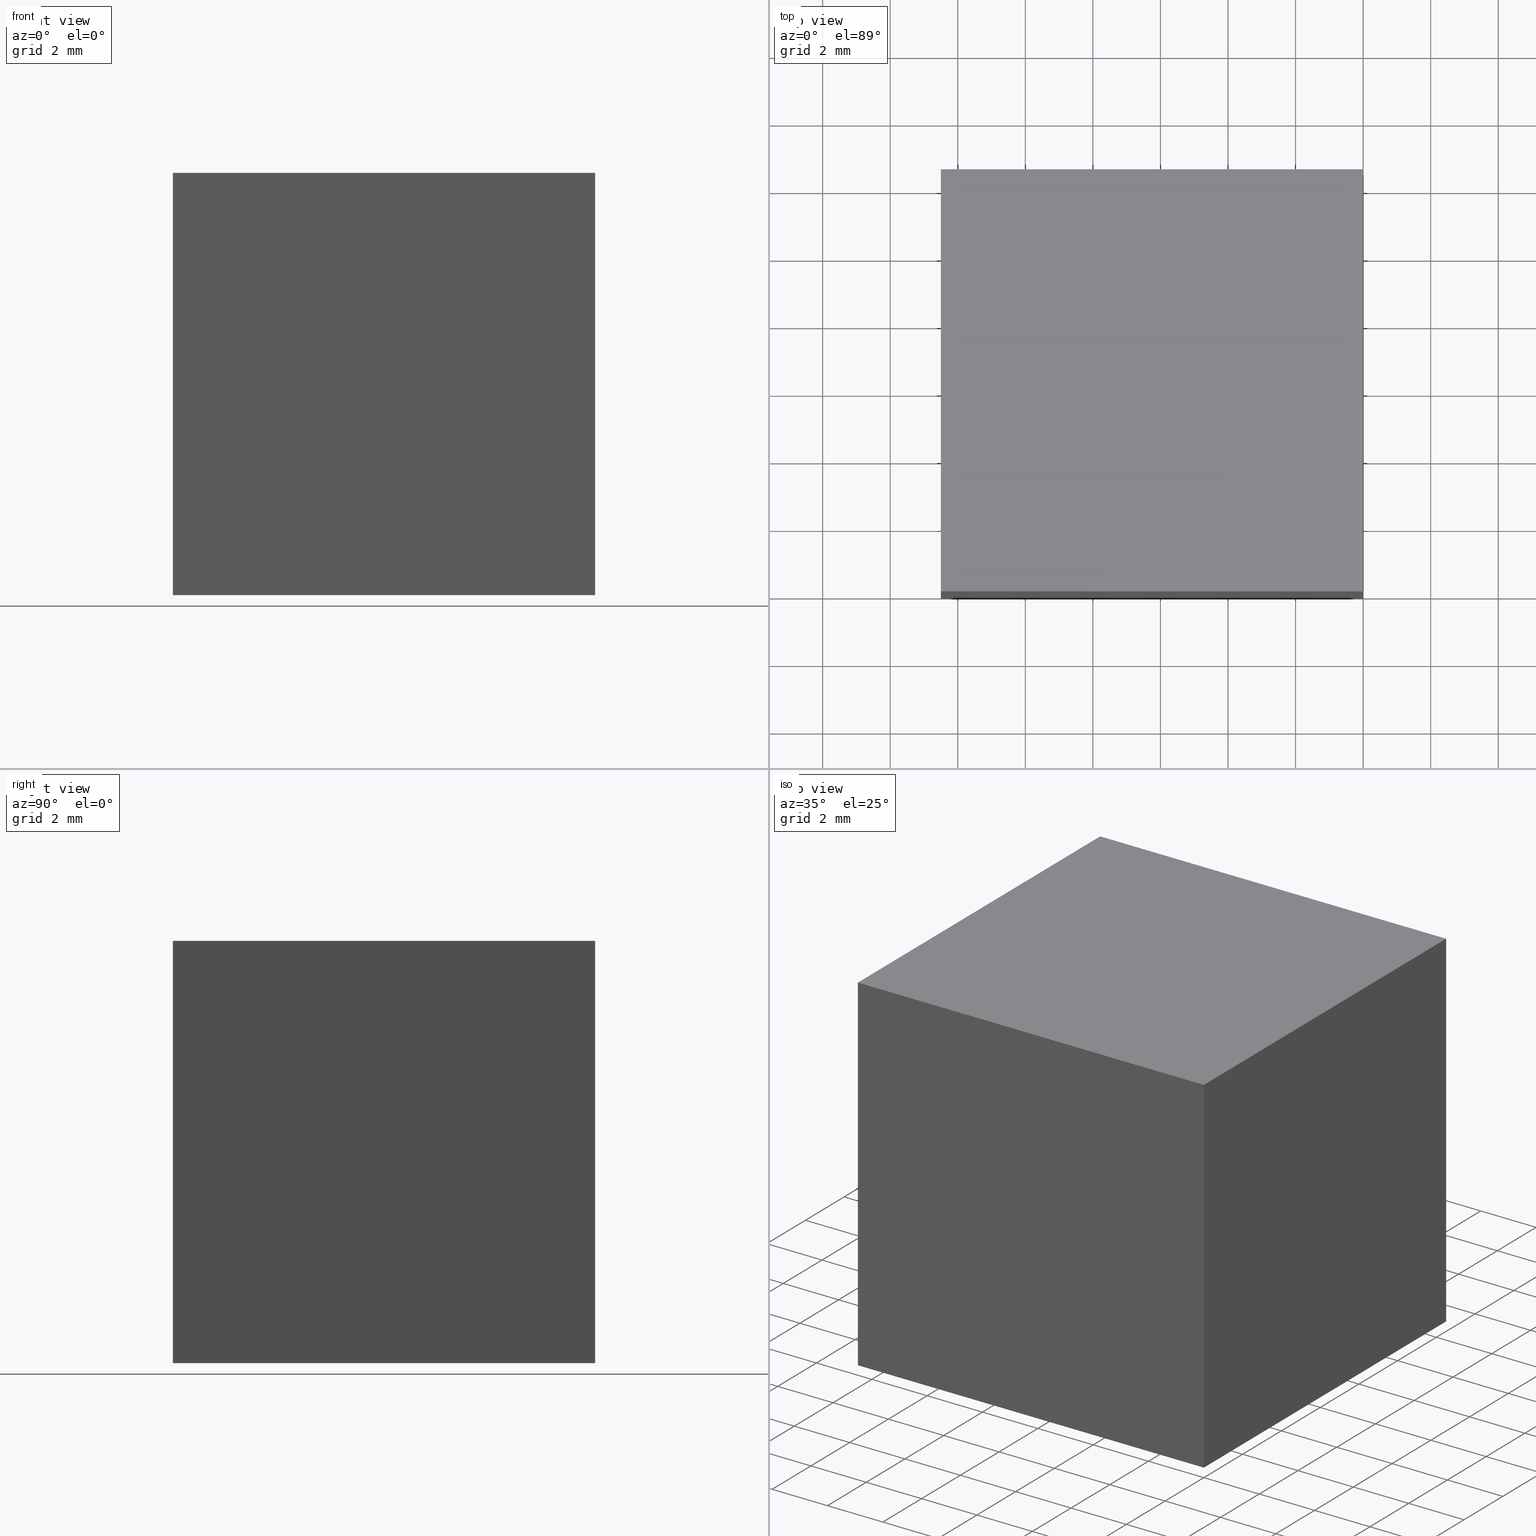
[diagram: canonical four-view strip — front | top / right | iso, engineering-drawing reading convention]
A machine part, canonical four-view strip (front | top / right | iso — engineering-drawing reading convention). The complete STEP part file that produces these views, byte-faithful:
ISO-10303-21;
HEADER;
FILE_DESCRIPTION (( 'STEP AP214' ),
    '1' );
FILE_NAME ('352506.STEP',
    '2019-08-15T02:03:04',
    ( 'user' ),
    ( '΢���й�' ),
    'SwSTEP 2.0',
    'SolidWorks 2016',
    '' );
FILE_SCHEMA (( 'AUTOMOTIVE_DESIGN' ));
ENDSEC;

DATA;
#1 = MECHANICAL_DESIGN_GEOMETRIC_PRESENTATION_REPRESENTATION (  '', ( #270 ), #19 ) ;
#2 = PRESENTATION_LAYER_ASSIGNMENT (  '', '', ( #275 ) ) ;
#3 = AXIS2_PLACEMENT_3D ( 'NONE', #130, #201, #47 ) ;
#4 = VERTEX_POINT ( 'NONE', #48 ) ;
#5 = PRODUCT ( '352506', '352506', '', ( #208 ) ) ;
#6 = VECTOR ( 'NONE', #52, 1000.000000000000000 ) ;
#7 =( NAMED_UNIT ( * ) SI_UNIT ( $, .STERADIAN. ) SOLID_ANGLE_UNIT ( ) );
#8 = EDGE_CURVE ( 'NONE', #56, #4, #16, .T. ) ;
#9 = CARTESIAN_POINT ( 'NONE',  ( 0.0000000000000000000, 0.0000000000000000000, 0.0000000000000000000 ) ) ;
#10 = ORIENTED_EDGE ( 'NONE', *, *, #150, .T. ) ;
#11 = CARTESIAN_POINT ( 'NONE',  ( 0.0000000000000000000, 12.50000000000000000, 0.0000000000000000000 ) ) ;
#12 = SURFACE_SIDE_STYLE ('',( #133 ) ) ;
#13 = VERTEX_POINT ( 'NONE', #244 ) ;
#14 = UNCERTAINTY_MEASURE_WITH_UNIT (LENGTH_MEASURE( 1.000000000000000100E-005 ), #210, 'distance_accuracy_value', 'NONE');
#15 = VECTOR ( 'NONE', #80, 1000.000000000000000 ) ;
#16 = LINE ( 'NONE', #223, #99 ) ;
#17 = ADVANCED_FACE ( 'NONE', ( #78 ), #67, .T. ) ;
#18 = CARTESIAN_POINT ( 'NONE',  ( -12.50000000000000000, 0.0000000000000000000, 0.0000000000000000000 ) ) ;
#19 =( GEOMETRIC_REPRESENTATION_CONTEXT ( 3 ) GLOBAL_UNCERTAINTY_ASSIGNED_CONTEXT ( ( #14 ) ) GLOBAL_UNIT_ASSIGNED_CONTEXT ( ( #210, #231, #144 ) ) REPRESENTATION_CONTEXT ( 'NONE', 'WORKASPACE' ) );
#20 = SURFACE_STYLE_FILL_AREA ( #135 ) ;
#21 = CARTESIAN_POINT ( 'NONE',  ( 0.0000000000000000000, 0.0000000000000000000, 0.0000000000000000000 ) ) ;
#22 = CARTESIAN_POINT ( 'NONE',  ( -12.50000000000000000, 12.50000000000000000, -12.49999999999999800 ) ) ;
#23 = MECHANICAL_DESIGN_GEOMETRIC_PRESENTATION_REPRESENTATION (  '', ( #275 ), #38 ) ;
#24 = DIRECTION ( 'NONE',  ( -0.0000000000000000000, -1.000000000000000000, -0.0000000000000000000 ) ) ;
#25 = LINE ( 'NONE', #102, #182 ) ;
#26 = EDGE_LOOP ( 'NONE', ( #180, #37, #227 ) ) ;
#27 = PLANE ( 'NONE',  #221 ) ;
#28 = EDGE_CURVE ( 'NONE', #97, #13, #141, .T. ) ;
#29 = CARTESIAN_POINT ( 'NONE',  ( 0.0000000000000000000, 12.50000000000000000, 0.0000000000000000000 ) ) ;
#30 = FACE_OUTER_BOUND ( 'NONE', #43, .T. ) ;
#31 = LINE ( 'NONE', #301, #179 ) ;
#32 = SURFACE_SIDE_STYLE ('',( #136 ) ) ;
#33 = CLOSED_SHELL ( 'NONE', ( #170, #82, #17, #267, #101 ) ) ;
#34 = DIRECTION ( 'NONE',  ( 0.0000000000000000000, 0.0000000000000000000, 1.000000000000000000 ) ) ;
#35 = PRESENTATION_STYLE_ASSIGNMENT (( #107 ) ) ;
#36 =( NAMED_UNIT ( * ) SI_UNIT ( $, .STERADIAN. ) SOLID_ANGLE_UNIT ( ) );
#37 = ORIENTED_EDGE ( 'NONE', *, *, #235, .T. ) ;
#38 =( GEOMETRIC_REPRESENTATION_CONTEXT ( 3 ) GLOBAL_UNCERTAINTY_ASSIGNED_CONTEXT ( ( #79 ) ) GLOBAL_UNIT_ASSIGNED_CONTEXT ( ( #248, #283, #7 ) ) REPRESENTATION_CONTEXT ( 'NONE', 'WORKASPACE' ) );
#39 = VECTOR ( 'NONE', #239, 1000.000000000000000 ) ;
#40 = AXIS2_PLACEMENT_3D ( 'NONE', #66, #200, #46 ) ;
#41 = EDGE_CURVE ( 'NONE', #97, #195, #291, .T. ) ;
#42 = DIRECTION ( 'NONE',  ( 0.7071067811865475700, 0.0000000000000000000, 0.7071067811865474600 ) ) ;
#43 = EDGE_LOOP ( 'NONE', ( #137, #258, #279, #183 ) ) ;
#44 = VECTOR ( 'NONE', #103, 1000.000000000000000 ) ;
#45 = ORIENTED_EDGE ( 'NONE', *, *, #254, .T. ) ;
#46 = DIRECTION ( 'NONE',  ( 0.0000000000000000000, -0.0000000000000000000, 1.000000000000000000 ) ) ;
#47 = DIRECTION ( 'NONE',  ( 1.000000000000000000, 0.0000000000000000000, 0.0000000000000000000 ) ) ;
#48 = CARTESIAN_POINT ( 'NONE',  ( -12.50000000000000000, 12.50000000000000000, -12.49999999999999800 ) ) ;
#49 = FACE_OUTER_BOUND ( 'NONE', #26, .T. ) ;
#50 = PRODUCT_DEFINITION_SHAPE ( 'NONE', 'NONE',  #148 ) ;
#51 = DIRECTION ( 'NONE',  ( 0.0000000000000000000, -0.0000000000000000000, 1.000000000000000000 ) ) ;
#52 = DIRECTION ( 'NONE',  ( 0.7071067811865475700, 0.0000000000000000000, 0.7071067811865474600 ) ) ;
#53 = ORIENTED_EDGE ( 'NONE', *, *, #257, .T. ) ;
#54 = DIRECTION ( 'NONE',  ( -0.0000000000000000000, -1.000000000000000000, -0.0000000000000000000 ) ) ;
#55 = ORIENTED_EDGE ( 'NONE', *, *, #41, .F. ) ;
#56 = VERTEX_POINT ( 'NONE', #158 ) ;
#57 = PLANE ( 'NONE',  #232 ) ;
#58 = VERTEX_POINT ( 'NONE', #274 ) ;
#59 = VECTOR ( 'NONE', #129, 1000.000000000000000 ) ;
#60 = FILL_AREA_STYLE_COLOUR ( '', #77 ) ;
#61 = ADVANCED_FACE ( 'NONE', ( #203 ), #106, .F. ) ;
#62 = DIRECTION ( 'NONE',  ( 0.0000000000000000000, -1.000000000000000000, 0.0000000000000000000 ) ) ;
#63 = EDGE_LOOP ( 'NONE', ( #53, #229, #45 ) ) ;
#64 = DIRECTION ( 'NONE',  ( 0.0000000000000000000, 1.000000000000000000, 0.0000000000000000000 ) ) ;
#65 = AXIS2_PLACEMENT_3D ( 'NONE', #9, #34, #185 ) ;
#66 = CARTESIAN_POINT ( 'NONE',  ( 0.0000000000000000000, 0.0000000000000000000, 0.0000000000000000000 ) ) ;
#67 = PLANE ( 'NONE',  #3 ) ;
#68 = STYLED_ITEM ( 'NONE', ( #75 ), #271 ) ;
#69 = AXIS2_PLACEMENT_3D ( 'NONE', #174, #128, #272 ) ;
#70 = VERTEX_POINT ( 'NONE', #243 ) ;
#71 = LINE ( 'NONE', #226, #213 ) ;
#72 = ORIENTED_EDGE ( 'NONE', *, *, #278, .F. ) ;
#73 = ADVANCED_BREP_SHAPE_REPRESENTATION ( '352506', ( #271, #237, #65 ), #218 ) ;
#74 = EDGE_LOOP ( 'NONE', ( #169, #284, #100, #287 ) ) ;
#75 = PRESENTATION_STYLE_ASSIGNMENT (( #119 ) ) ;
#76 = EDGE_LOOP ( 'NONE', ( #108, #113, #104 ) ) ;
#77 = COLOUR_RGB ( '',1.000000000000000000, 1.000000000000000000, 1.000000000000000000 ) ;
#78 = FACE_OUTER_BOUND ( 'NONE', #236, .T. ) ;
#79 = UNCERTAINTY_MEASURE_WITH_UNIT (LENGTH_MEASURE( 1.000000000000000100E-005 ), #248, 'distance_accuracy_value', 'NONE');
#80 = DIRECTION ( 'NONE',  ( -0.0000000000000000000, -0.0000000000000000000, -1.000000000000000000 ) ) ;
#81 = SHAPE_DEFINITION_REPRESENTATION ( #50, #73 ) ;
#82 = ADVANCED_FACE ( 'NONE', ( #255 ), #297, .T. ) ;
#83 = VECTOR ( 'NONE', #62, 1000.000000000000000 ) ;
#84 = CARTESIAN_POINT ( 'NONE',  ( -12.50000000000000000, 12.50000000000000000, -12.49999999999999800 ) ) ;
#85 = DIRECTION ( 'NONE',  ( -1.000000000000000000, 0.0000000000000000000, 1.387778780781445700E-016 ) ) ;
#86 = FACE_OUTER_BOUND ( 'NONE', #76, .T. ) ;
#87 = LINE ( 'NONE', #177, #282 ) ;
#88 = CARTESIAN_POINT ( 'NONE',  ( 0.0000000000000000000, 12.50000000000000000, 0.0000000000000000000 ) ) ;
#89 = PLANE ( 'NONE',  #145 ) ;
#90 = DIRECTION ( 'NONE',  ( 0.7071067811865474600, 0.0000000000000000000, -0.7071067811865476800 ) ) ;
#91 = ORIENTED_EDGE ( 'NONE', *, *, #28, .T. ) ;
#92 = UNCERTAINTY_MEASURE_WITH_UNIT (LENGTH_MEASURE( 1.000000000000000100E-005 ), #289, 'distance_accuracy_value', 'NONE');
#93 = ORIENTED_EDGE ( 'NONE', *, *, #41, .T. ) ;
#94 = CARTESIAN_POINT ( 'NONE',  ( -12.50000000000000000, 12.50000000000000000, -12.49999999999999800 ) ) ;
#95 = LINE ( 'NONE', #94, #147 ) ;
#96 = FILL_AREA_STYLE_COLOUR ( '', #194 ) ;
#97 = VERTEX_POINT ( 'NONE', #84 ) ;
#98 =( NAMED_UNIT ( * ) PLANE_ANGLE_UNIT ( ) SI_UNIT ( $, .RADIAN. ) );
#99 = VECTOR ( 'NONE', #85, 1000.000000000000000 ) ;
#100 = ORIENTED_EDGE ( 'NONE', *, *, #235, .F. ) ;
#101 = ADVANCED_FACE ( 'NONE', ( #152 ), #105, .F. ) ;
#102 = CARTESIAN_POINT ( 'NONE',  ( 0.0000000000000000000, 0.0000000000000000000, 0.0000000000000000000 ) ) ;
#103 = DIRECTION ( 'NONE',  ( 0.0000000000000000000, 0.0000000000000000000, -1.000000000000000000 ) ) ;
#104 = ORIENTED_EDGE ( 'NONE', *, *, #293, .F. ) ;
#105 = PLANE ( 'NONE',  #165 ) ;
#106 = PLANE ( 'NONE',  #40 ) ;
#107 = SURFACE_STYLE_USAGE ( .BOTH. , #277 ) ;
#108 = ORIENTED_EDGE ( 'NONE', *, *, #28, .F. ) ;
#109 = CARTESIAN_POINT ( 'NONE',  ( -12.50000000000000000, 12.50000000000000000, -12.49999999999999800 ) ) ;
#110 = PRODUCT_DEFINITION_CONTEXT ( 'detailed design', #112, 'design' ) ;
#111 = VERTEX_POINT ( 'NONE', #156 ) ;
#112 = APPLICATION_CONTEXT ( 'automotive_design' ) ;
#113 = ORIENTED_EDGE ( 'NONE', *, *, #206, .F. ) ;
#114 = DIRECTION ( 'NONE',  ( 1.000000000000000000, 0.0000000000000000000, -1.387778780781445700E-016 ) ) ;
#115 = CARTESIAN_POINT ( 'NONE',  ( 0.0000000000000000000, 12.50000000000000000, 0.0000000000000000000 ) ) ;
#116 = ORIENTED_EDGE ( 'NONE', *, *, #186, .F. ) ;
#117 = FILL_AREA_STYLE ('',( #96 ) ) ;
#118 =( LENGTH_UNIT ( ) NAMED_UNIT ( * ) SI_UNIT ( .MILLI., .METRE. ) );
#119 = SURFACE_STYLE_USAGE ( .BOTH. , #12 ) ;
#120 = APPLICATION_PROTOCOL_DEFINITION ( 'draft international standard', 'automotive_design', 1998, #112 ) ;
#121 = ORIENTED_EDGE ( 'NONE', *, *, #175, .F. ) ;
#122 = FILL_AREA_STYLE_COLOUR ( '', #269 ) ;
#123 = LINE ( 'NONE', #295, #6 ) ;
#124 = ADVANCED_FACE ( 'NONE', ( #49 ), #219, .T. ) ;
#125 = EDGE_CURVE ( 'NONE', #240, #220, #71, .T. ) ;
#126 = DIRECTION ( 'NONE',  ( -0.0000000000000000000, 1.000000000000000000, 0.0000000000000000000 ) ) ;
#127 = DIRECTION ( 'NONE',  ( 0.7071067811865474600, 0.0000000000000000000, -0.7071067811865476800 ) ) ;
#128 = DIRECTION ( 'NONE',  ( -1.000000000000000000, 0.0000000000000000000, 0.0000000000000000000 ) ) ;
#129 = DIRECTION ( 'NONE',  ( 0.7071067811865475700, 0.0000000000000000000, 0.7071067811865474600 ) ) ;
#130 = CARTESIAN_POINT ( 'NONE',  ( -12.50000000000000000, 12.50000000000000000, 0.0000000000000000000 ) ) ;
#131 = VECTOR ( 'NONE', #225, 1000.000000000000000 ) ;
#132 = ORIENTED_EDGE ( 'NONE', *, *, #222, .F. ) ;
#133 = SURFACE_STYLE_FILL_AREA ( #151 ) ;
#134 = VECTOR ( 'NONE', #160, 1000.000000000000000 ) ;
#135 = FILL_AREA_STYLE ('',( #122 ) ) ;
#136 = SURFACE_STYLE_FILL_AREA ( #117 ) ;
#137 = ORIENTED_EDGE ( 'NONE', *, *, #125, .T. ) ;
#138 = LINE ( 'NONE', #262, #146 ) ;
#139 = LINE ( 'NONE', #18, #131 ) ;
#140 = LINE ( 'NONE', #217, #39 ) ;
#141 = LINE ( 'NONE', #298, #59 ) ;
#142 = CARTESIAN_POINT ( 'NONE',  ( -12.50000000000000000, 0.0000000000000000000, -12.49999999999999800 ) ) ;
#143 = DIRECTION ( 'NONE',  ( -0.0000000000000000000, -0.0000000000000000000, -1.000000000000000000 ) ) ;
#144 =( NAMED_UNIT ( * ) SI_UNIT ( $, .STERADIAN. ) SOLID_ANGLE_UNIT ( ) );
#145 = AXIS2_PLACEMENT_3D ( 'NONE', #216, #181, #155 ) ;
#146 = VECTOR ( 'NONE', #149, 1000.000000000000000 ) ;
#147 = VECTOR ( 'NONE', #143, 1000.000000000000000 ) ;
#148 = PRODUCT_DEFINITION ( 'δ֪', '', #163, #110 ) ;
#149 = DIRECTION ( 'NONE',  ( -1.000000000000000000, -0.0000000000000000000, -0.0000000000000000000 ) ) ;
#150 = EDGE_CURVE ( 'NONE', #56, #292, #87, .T. ) ;
#151 = FILL_AREA_STYLE ('',( #60 ) ) ;
#152 = FACE_OUTER_BOUND ( 'NONE', #63, .T. ) ;
#153 = DIRECTION ( 'NONE',  ( 0.0000000000000000000, 0.0000000000000000000, -1.000000000000000000 ) ) ;
#154 = ORIENTED_EDGE ( 'NONE', *, *, #245, .T. ) ;
#155 = DIRECTION ( 'NONE',  ( 0.0000000000000000000, -0.0000000000000000000, 1.000000000000000000 ) ) ;
#156 = CARTESIAN_POINT ( 'NONE',  ( 0.0000000000000000000, 0.0000000000000000000, 0.0000000000000000000 ) ) ;
#157 = EDGE_LOOP ( 'NONE', ( #191, #193, #251 ) ) ;
#158 = CARTESIAN_POINT ( 'NONE',  ( 0.0000000000000000000, 12.50000000000000000, -12.50000000000000000 ) ) ;
#159 = FACE_OUTER_BOUND ( 'NONE', #296, .T. ) ;
#160 = DIRECTION ( 'NONE',  ( -0.0000000000000000000, -1.000000000000000000, -0.0000000000000000000 ) ) ;
#161 = PLANE ( 'NONE',  #253 ) ;
#162 = PRESENTATION_LAYER_ASSIGNMENT (  '', '', ( #68 ) ) ;
#163 = PRODUCT_DEFINITION_FORMATION_WITH_SPECIFIED_SOURCE ( '�κ�', '', #5, .NOT_KNOWN. ) ;
#164 = EDGE_LOOP ( 'NONE', ( #281, #116, #246, #93 ) ) ;
#165 = AXIS2_PLACEMENT_3D ( 'NONE', #21, #64, #198 ) ;
#166 = EDGE_CURVE ( 'NONE', #4, #300, #123, .T. ) ;
#167 = UNCERTAINTY_MEASURE_WITH_UNIT (LENGTH_MEASURE( 1.000000000000000100E-005 ), #118, 'distance_accuracy_value', 'NONE');
#168 =( NAMED_UNIT ( * ) PLANE_ANGLE_UNIT ( ) SI_UNIT ( $, .RADIAN. ) );
#169 = ORIENTED_EDGE ( 'NONE', *, *, #228, .T. ) ;
#170 = ADVANCED_FACE ( 'NONE', ( #159 ), #27, .T. ) ;
#171 = MECHANICAL_DESIGN_GEOMETRIC_PRESENTATION_REPRESENTATION (  '', ( #68 ), #187 ) ;
#172 = ORIENTED_EDGE ( 'NONE', *, *, #186, .T. ) ;
#173 = PRODUCT_RELATED_PRODUCT_CATEGORY ( 'part', '', ( #5 ) ) ;
#174 = CARTESIAN_POINT ( 'NONE',  ( -12.50000000000000000, 12.50000000000000000, -12.49999999999999800 ) ) ;
#175 = EDGE_CURVE ( 'NONE', #4, #240, #238, .T. ) ;
#176 = DIRECTION ( 'NONE',  ( 0.0000000000000000000, -1.000000000000000000, 0.0000000000000000000 ) ) ;
#177 = CARTESIAN_POINT ( 'NONE',  ( 0.0000000000000000000, 12.50000000000000000, -12.50000000000000000 ) ) ;
#178 = ORIENTED_EDGE ( 'NONE', *, *, #222, .T. ) ;
#179 = VECTOR ( 'NONE', #299, 1000.000000000000000 ) ;
#180 = ORIENTED_EDGE ( 'NONE', *, *, #166, .T. ) ;
#181 = DIRECTION ( 'NONE',  ( 0.0000000000000000000, 1.000000000000000000, 0.0000000000000000000 ) ) ;
#182 = VECTOR ( 'NONE', #42, 1000.000000000000000 ) ;
#183 = ORIENTED_EDGE ( 'NONE', *, *, #175, .T. ) ;
#184 = CARTESIAN_POINT ( 'NONE',  ( -12.50000000000000000, 12.50000000000000000, -12.49999999999999800 ) ) ;
#185 = DIRECTION ( 'NONE',  ( 1.000000000000000000, 0.0000000000000000000, 0.0000000000000000000 ) ) ;
#186 = EDGE_CURVE ( 'NONE', #70, #58, #31, .T. ) ;
#187 =( GEOMETRIC_REPRESENTATION_CONTEXT ( 3 ) GLOBAL_UNCERTAINTY_ASSIGNED_CONTEXT ( ( #92 ) ) GLOBAL_UNIT_ASSIGNED_CONTEXT ( ( #289, #98, #263 ) ) REPRESENTATION_CONTEXT ( 'NONE', 'WORKASPACE' ) );
#188 = CARTESIAN_POINT ( 'NONE',  ( 0.0000000000000000000, 12.50000000000000000, 0.0000000000000000000 ) ) ;
#189 = AXIS2_PLACEMENT_3D ( 'NONE', #242, #126, #51 ) ;
#190 = EDGE_CURVE ( 'NONE', #300, #220, #249, .T. ) ;
#191 = ORIENTED_EDGE ( 'NONE', *, *, #125, .F. ) ;
#192 = LINE ( 'NONE', #266, #15 ) ;
#193 = ORIENTED_EDGE ( 'NONE', *, *, #245, .F. ) ;
#194 = COLOUR_RGB ( '',1.000000000000000000, 1.000000000000000000, 1.000000000000000000 ) ;
#195 = VERTEX_POINT ( 'NONE', #224 ) ;
#196 = ADVANCED_FACE ( 'NONE', ( #276 ), #161, .F. ) ;
#197 = CARTESIAN_POINT ( 'NONE',  ( 0.0000000000000000000, 0.0000000000000000000, 0.0000000000000000000 ) ) ;
#198 = DIRECTION ( 'NONE',  ( 0.0000000000000000000, -0.0000000000000000000, 1.000000000000000000 ) ) ;
#199 = LINE ( 'NONE', #197, #44 ) ;
#200 = DIRECTION ( 'NONE',  ( -0.0000000000000000000, 1.000000000000000000, 0.0000000000000000000 ) ) ;
#201 = DIRECTION ( 'NONE',  ( -0.0000000000000000000, 0.0000000000000000000, 1.000000000000000000 ) ) ;
#202 = CARTESIAN_POINT ( 'NONE',  ( 0.0000000000000000000, 12.50000000000000000, -12.50000000000000000 ) ) ;
#203 = FACE_OUTER_BOUND ( 'NONE', #157, .T. ) ;
#204 = ORIENTED_EDGE ( 'NONE', *, *, #257, .F. ) ;
#205 = ORIENTED_EDGE ( 'NONE', *, *, #293, .T. ) ;
#206 = EDGE_CURVE ( 'NONE', #70, #97, #95, .T. ) ;
#207 = VECTOR ( 'NONE', #54, 1000.000000000000000 ) ;
#208 = PRODUCT_CONTEXT ( 'NONE', #260, 'mechanical' ) ;
#209 = SURFACE_STYLE_USAGE ( .BOTH. , #32 ) ;
#210 =( LENGTH_UNIT ( ) NAMED_UNIT ( * ) SI_UNIT ( .MILLI., .METRE. ) );
#211 = LINE ( 'NONE', #241, #261 ) ;
#212 = ORIENTED_EDGE ( 'NONE', *, *, #8, .F. ) ;
#213 = VECTOR ( 'NONE', #247, 1000.000000000000000 ) ;
#214 = CLOSED_SHELL ( 'NONE', ( #215, #294, #196, #124, #61 ) ) ;
#215 = ADVANCED_FACE ( 'NONE', ( #30 ), #259, .F. ) ;
#216 = CARTESIAN_POINT ( 'NONE',  ( 0.0000000000000000000, 12.50000000000000000, 0.0000000000000000000 ) ) ;
#217 = CARTESIAN_POINT ( 'NONE',  ( 0.0000000000000000000, 0.0000000000000000000, -12.50000000000000000 ) ) ;
#218 =( GEOMETRIC_REPRESENTATION_CONTEXT ( 3 ) GLOBAL_UNCERTAINTY_ASSIGNED_CONTEXT ( ( #167 ) ) GLOBAL_UNIT_ASSIGNED_CONTEXT ( ( #118, #168, #36 ) ) REPRESENTATION_CONTEXT ( 'NONE', 'WORKASPACE' ) );
#219 = PLANE ( 'NONE',  #189 ) ;
#220 = VERTEX_POINT ( 'NONE', #230 ) ;
#221 = AXIS2_PLACEMENT_3D ( 'NONE', #88, #90, #250 ) ;
#222 = EDGE_CURVE ( 'NONE', #13, #111, #280, .T. ) ;
#223 = CARTESIAN_POINT ( 'NONE',  ( 0.0000000000000000000, 12.50000000000000000, -12.50000000000000000 ) ) ;
#224 = CARTESIAN_POINT ( 'NONE',  ( -12.50000000000000000, -0.0000000000000000000, -12.49999999999999800 ) ) ;
#225 = DIRECTION ( 'NONE',  ( -1.000000000000000000, -0.0000000000000000000, -0.0000000000000000000 ) ) ;
#226 = CARTESIAN_POINT ( 'NONE',  ( -12.50000000000000000, 0.0000000000000000000, -12.49999999999999800 ) ) ;
#227 = ORIENTED_EDGE ( 'NONE', *, *, #8, .T. ) ;
#228 = EDGE_CURVE ( 'NONE', #220, #292, #199, .T. ) ;
#229 = ORIENTED_EDGE ( 'NONE', *, *, #278, .T. ) ;
#230 = CARTESIAN_POINT ( 'NONE',  ( 0.0000000000000000000, 0.0000000000000000000, 0.0000000000000000000 ) ) ;
#231 =( NAMED_UNIT ( * ) PLANE_ANGLE_UNIT ( ) SI_UNIT ( $, .RADIAN. ) );
#232 = AXIS2_PLACEMENT_3D ( 'NONE', #188, #288, #233 ) ;
#233 = DIRECTION ( 'NONE',  ( 0.0000000000000000000, 0.0000000000000000000, 1.000000000000000000 ) ) ;
#234 = CARTESIAN_POINT ( 'NONE',  ( 0.0000000000000000000, 0.0000000000000000000, -12.50000000000000000 ) ) ;
#235 = EDGE_CURVE ( 'NONE', #300, #56, #211, .T. ) ;
#236 = EDGE_LOOP ( 'NONE', ( #72, #132, #205, #172 ) ) ;
#237 = MANIFOLD_SOLID_BREP ( '͹̨-����2', #33 ) ;
#238 = LINE ( 'NONE', #109, #134 ) ;
#239 = DIRECTION ( 'NONE',  ( -1.000000000000000000, 0.0000000000000000000, 1.387778780781445700E-016 ) ) ;
#240 = VERTEX_POINT ( 'NONE', #142 ) ;
#241 = CARTESIAN_POINT ( 'NONE',  ( 0.0000000000000000000, 12.50000000000000000, 0.0000000000000000000 ) ) ;
#242 = CARTESIAN_POINT ( 'NONE',  ( 0.0000000000000000000, 12.50000000000000000, 0.0000000000000000000 ) ) ;
#243 = CARTESIAN_POINT ( 'NONE',  ( -12.50000000000000000, 12.50000000000000000, 0.0000000000000000000 ) ) ;
#244 = CARTESIAN_POINT ( 'NONE',  ( 0.0000000000000000000, 12.50000000000000000, 0.0000000000000000000 ) ) ;
#245 = EDGE_CURVE ( 'NONE', #292, #240, #140, .T. ) ;
#246 = ORIENTED_EDGE ( 'NONE', *, *, #206, .T. ) ;
#247 = DIRECTION ( 'NONE',  ( 0.7071067811865475700, 0.0000000000000000000, 0.7071067811865474600 ) ) ;
#248 =( LENGTH_UNIT ( ) NAMED_UNIT ( * ) SI_UNIT ( .MILLI., .METRE. ) );
#249 = LINE ( 'NONE', #29, #207 ) ;
#250 = DIRECTION ( 'NONE',  ( -0.7071067811865476800, 0.0000000000000000000, -0.7071067811865474600 ) ) ;
#251 = ORIENTED_EDGE ( 'NONE', *, *, #228, .F. ) ;
#252 = FACE_OUTER_BOUND ( 'NONE', #74, .T. ) ;
#253 = AXIS2_PLACEMENT_3D ( 'NONE', #202, #265, #114 ) ;
#254 = EDGE_CURVE ( 'NONE', #58, #195, #192, .T. ) ;
#255 = FACE_OUTER_BOUND ( 'NONE', #164, .T. ) ;
#256 = PRESENTATION_STYLE_ASSIGNMENT (( #209 ) ) ;
#257 = EDGE_CURVE ( 'NONE', #195, #111, #25, .T. ) ;
#258 = ORIENTED_EDGE ( 'NONE', *, *, #190, .F. ) ;
#259 = PLANE ( 'NONE',  #290 ) ;
#260 = APPLICATION_CONTEXT ( 'automotive_design' ) ;
#261 = VECTOR ( 'NONE', #153, 1000.000000000000000 ) ;
#262 = CARTESIAN_POINT ( 'NONE',  ( -12.50000000000000000, 12.50000000000000000, 0.0000000000000000000 ) ) ;
#263 =( NAMED_UNIT ( * ) SI_UNIT ( $, .STERADIAN. ) SOLID_ANGLE_UNIT ( ) );
#264 = VECTOR ( 'NONE', #176, 1000.000000000000000 ) ;
#265 = DIRECTION ( 'NONE',  ( 1.387778780781445700E-016, -0.0000000000000000000, 1.000000000000000000 ) ) ;
#266 = CARTESIAN_POINT ( 'NONE',  ( -12.50000000000000000, -0.0000000000000000000, -12.49999999999999800 ) ) ;
#267 = ADVANCED_FACE ( 'NONE', ( #86 ), #89, .T. ) ;
#268 = DIRECTION ( 'NONE',  ( -0.7071067811865476800, 0.0000000000000000000, -0.7071067811865474600 ) ) ;
#269 = COLOUR_RGB ( '',1.000000000000000000, 1.000000000000000000, 1.000000000000000000 ) ;
#270 = STYLED_ITEM ( 'NONE', ( #256 ), #73 ) ;
#271 = MANIFOLD_SOLID_BREP ( '͹̨-����1', #214 ) ;
#272 = DIRECTION ( 'NONE',  ( 0.0000000000000000000, 0.0000000000000000000, 1.000000000000000000 ) ) ;
#273 = EDGE_LOOP ( 'NONE', ( #154, #121, #212, #10 ) ) ;
#274 = CARTESIAN_POINT ( 'NONE',  ( -12.50000000000000000, 0.0000000000000000000, 0.0000000000000000000 ) ) ;
#275 = STYLED_ITEM ( 'NONE', ( #35 ), #237 ) ;
#276 = FACE_OUTER_BOUND ( 'NONE', #273, .T. ) ;
#277 = SURFACE_SIDE_STYLE ('',( #20 ) ) ;
#278 = EDGE_CURVE ( 'NONE', #111, #58, #139, .T. ) ;
#279 = ORIENTED_EDGE ( 'NONE', *, *, #166, .F. ) ;
#280 = LINE ( 'NONE', #115, #83 ) ;
#281 = ORIENTED_EDGE ( 'NONE', *, *, #254, .F. ) ;
#282 = VECTOR ( 'NONE', #24, 1000.000000000000000 ) ;
#283 =( NAMED_UNIT ( * ) PLANE_ANGLE_UNIT ( ) SI_UNIT ( $, .RADIAN. ) );
#284 = ORIENTED_EDGE ( 'NONE', *, *, #150, .F. ) ;
#285 = APPLICATION_PROTOCOL_DEFINITION ( 'draft international standard', 'automotive_design', 1998, #260 ) ;
#286 = PRESENTATION_LAYER_ASSIGNMENT (  '', '', ( #270 ) ) ;
#287 = ORIENTED_EDGE ( 'NONE', *, *, #190, .T. ) ;
#288 = DIRECTION ( 'NONE',  ( -1.000000000000000000, 0.0000000000000000000, 0.0000000000000000000 ) ) ;
#289 =( LENGTH_UNIT ( ) NAMED_UNIT ( * ) SI_UNIT ( .MILLI., .METRE. ) );
#290 = AXIS2_PLACEMENT_3D ( 'NONE', #184, #127, #268 ) ;
#291 = LINE ( 'NONE', #22, #264 ) ;
#292 = VERTEX_POINT ( 'NONE', #234 ) ;
#293 = EDGE_CURVE ( 'NONE', #13, #70, #138, .T. ) ;
#294 = ADVANCED_FACE ( 'NONE', ( #252 ), #57, .F. ) ;
#295 = CARTESIAN_POINT ( 'NONE',  ( -12.50000000000000000, 12.50000000000000000, -12.49999999999999800 ) ) ;
#296 = EDGE_LOOP ( 'NONE', ( #204, #55, #91, #178 ) ) ;
#297 = PLANE ( 'NONE',  #69 ) ;
#298 = CARTESIAN_POINT ( 'NONE',  ( 0.0000000000000000000, 12.50000000000000000, 0.0000000000000000000 ) ) ;
#299 = DIRECTION ( 'NONE',  ( 0.0000000000000000000, -1.000000000000000000, 0.0000000000000000000 ) ) ;
#300 = VERTEX_POINT ( 'NONE', #11 ) ;
#301 = CARTESIAN_POINT ( 'NONE',  ( -12.50000000000000000, 12.50000000000000000, 0.0000000000000000000 ) ) ;
ENDSEC;
END-ISO-10303-21;
